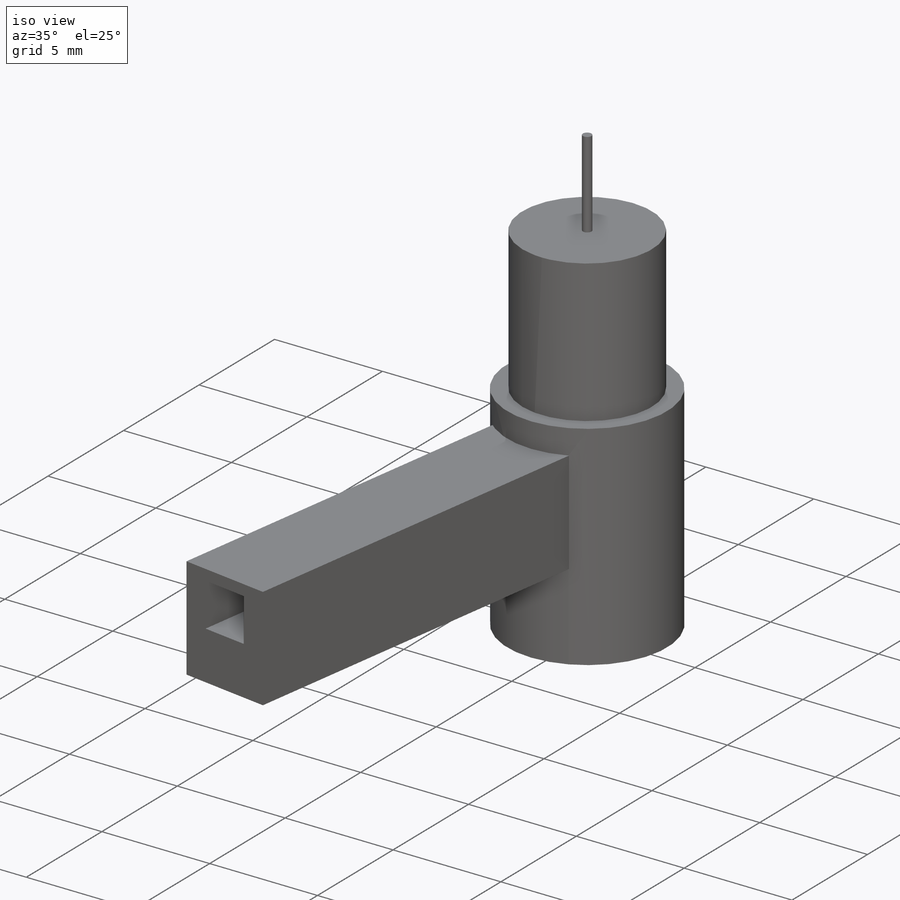
[diagram: iso view]
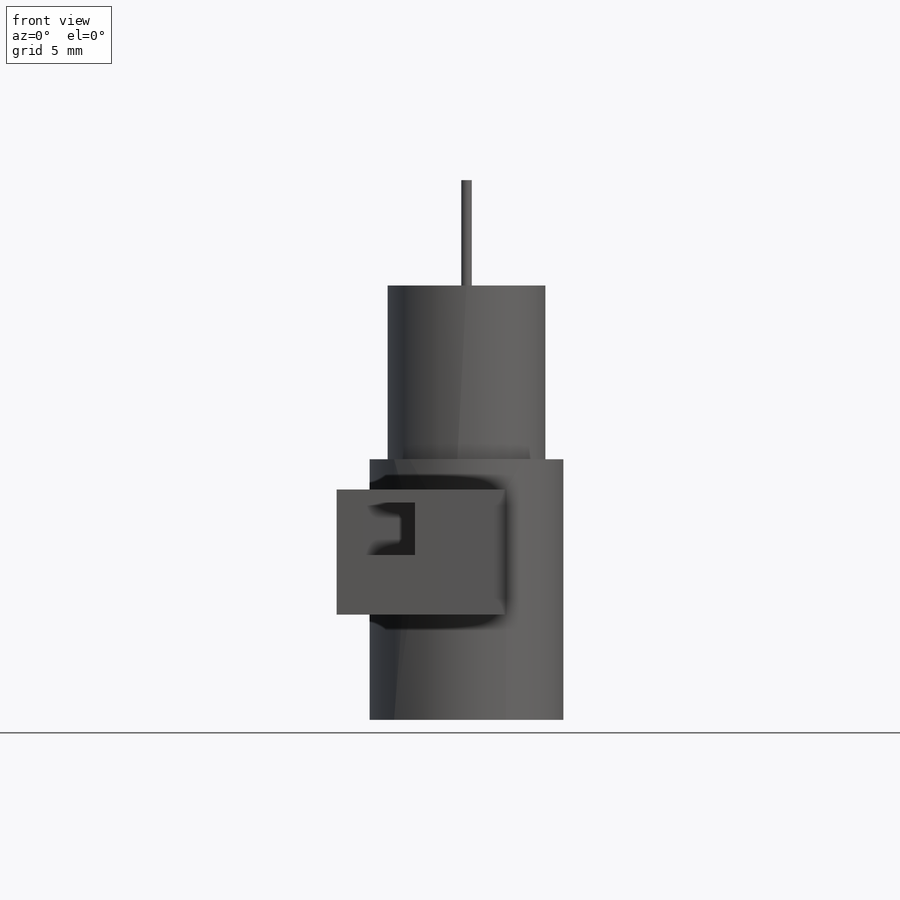
[diagram: front view]
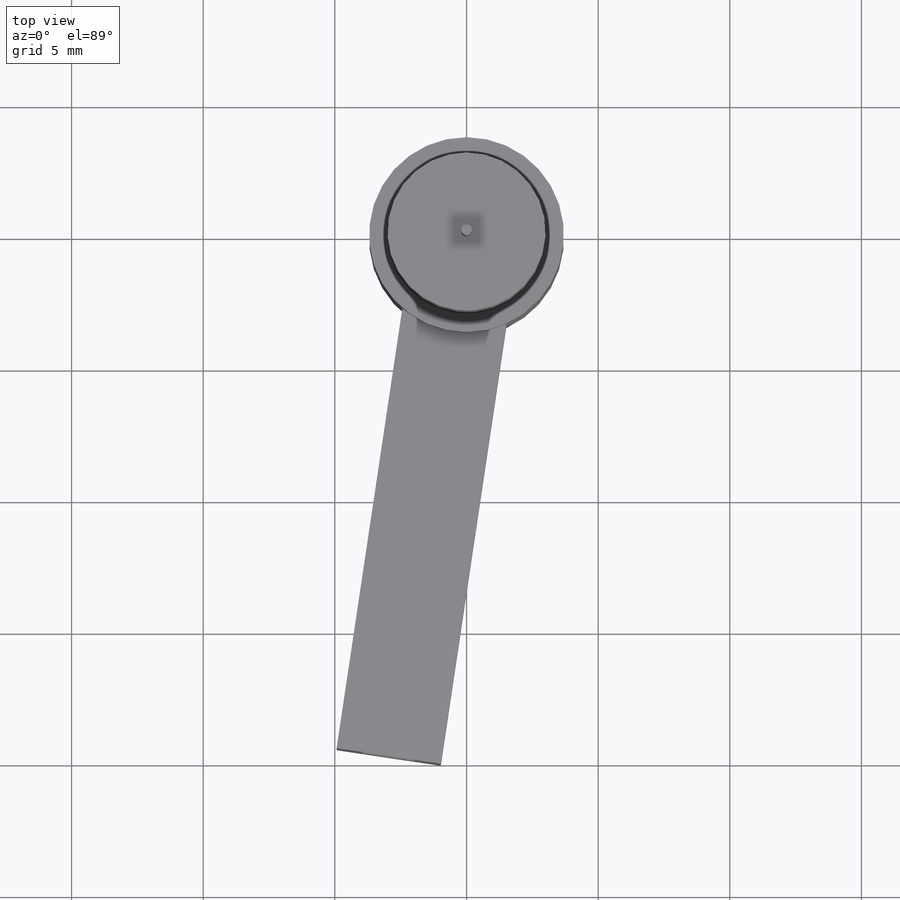
[diagram: top view]
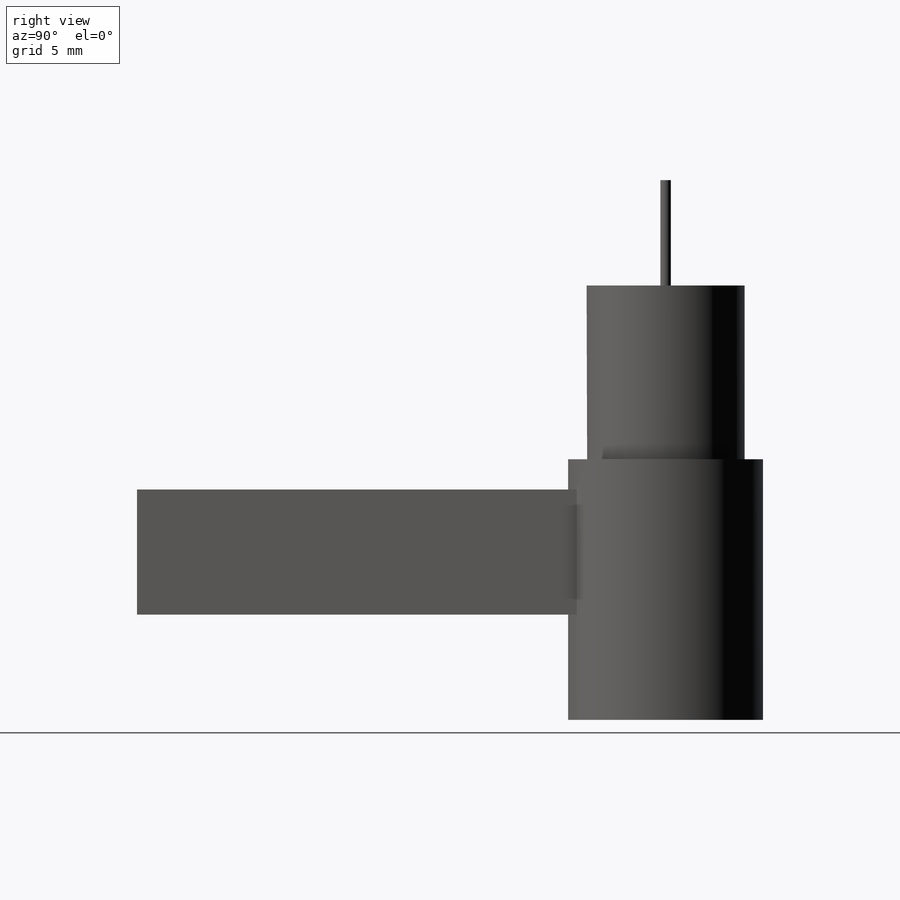
[diagram: right view]
SOLIDWORKS PART (.sldprt)
format: sldprt  version: not decoded by parser v0  size: 164,352 bytes
history: native  units: mm
features: sketch x5, extrude x4, material x1, cut_extrude x1 (+11 scaffold rows collapsed)
feature tree (22):
  scaffold x11  (default folders/planes/origin — collapsed)
  material  "Material <not specified>"
  sketch  "Sketch1"  dims[D1=6.0mm]
  extrude  "Boss-Extrude1"  Depth=16.5mm
  sketch  "Sketch2"  dims[D1=7.4mm]
  extrude  "Boss-Extrude2"  Depth=9.9mm
  sketch  "Sketch3"  dims[D3=20.0mm D4=4.0mm D1=2.0mm D2=2.0mm]
  extrude  "Boss-Extrude3"  Depth=4.75mm
  sketch  "Sketch4"  dims[D1=~0.887568mm]
  extrude  "Boss-Extrude4"  Depth=4mm
  sketch  "Sketch5"  dims[D1=0.5mm D2=2.0mm D3=1.0mm D4=1.0mm]
  cut_extrude  "Cut-Extrude1"  Depth=20mm
decode coverage: 10 of 10 modeling features carry decoded parameters
note: ~ marks probable driven/reference dimensions
note: suppression state not decoded; provenance and decode notes live in map.json
